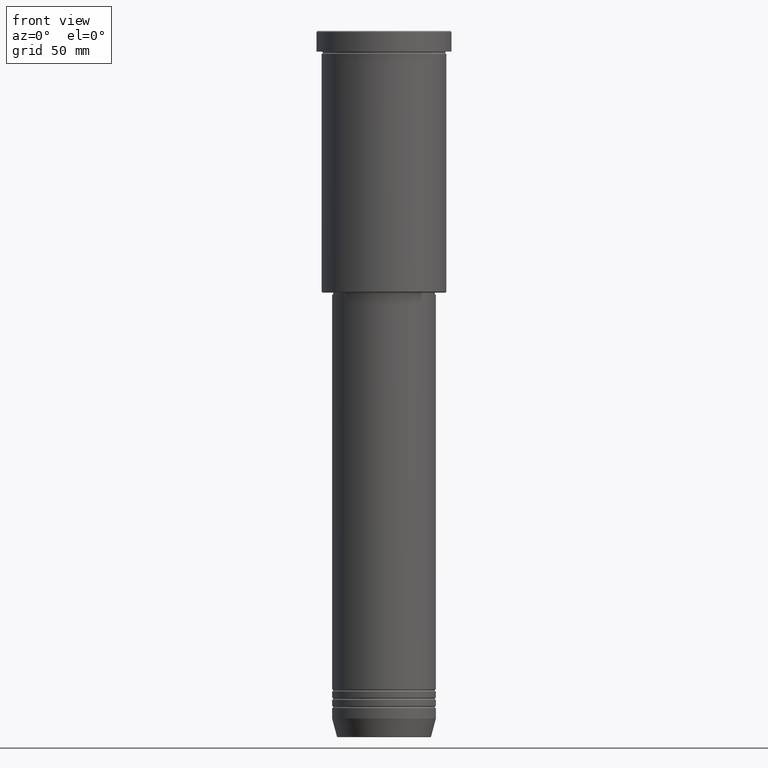
[diagram: clean part render]
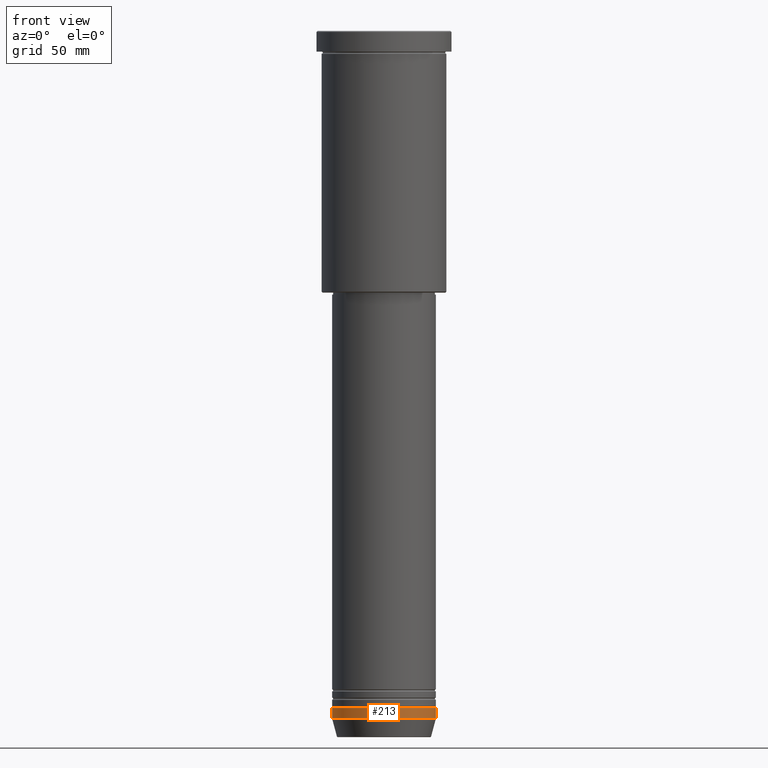
[diagram: same view with one face highlighted and labeled with its STEP entity id]
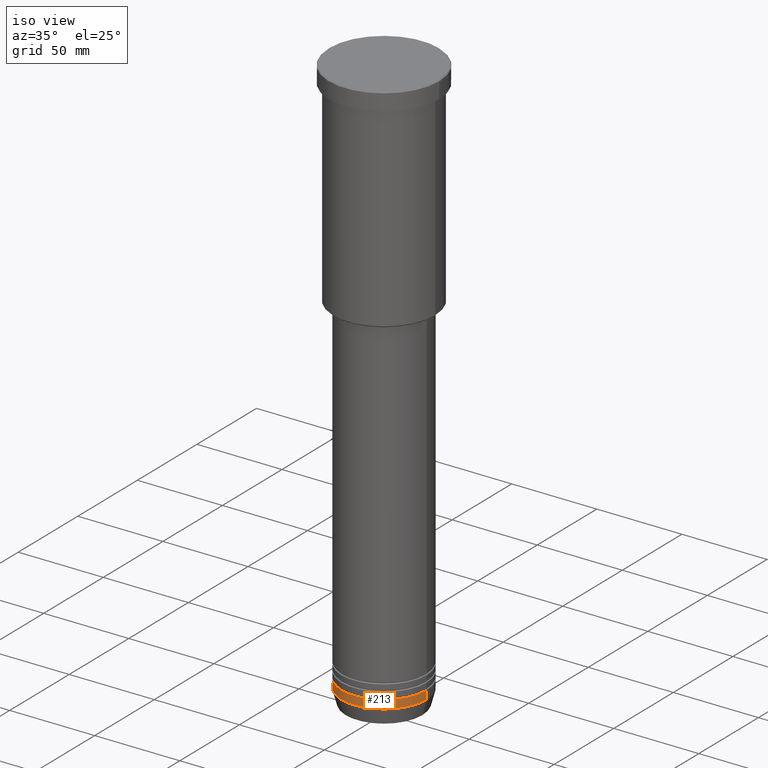
[diagram: same view with one face highlighted and labeled with its STEP entity id]
A machine part, front view. The second image highlights one B-rep face of the part: STEP entity #213.
A second angle (iso view) of the same face is appended — the face is thin or edge-on in the first view.
In plain terms, the highlighted cylindrical surface (partial cylindrical patch) has radius 25 mm, axis along (-0, -0, 1).
Its self-contained STEP definition (entity closure, byte-faithful):
#43 = DIRECTION ( 'NONE',  ( -0.000000000000000000, -0.000000000000000000, 1.000000000000000000 ) ) ;
#70 = VERTEX_POINT ( 'NONE', #594 ) ;
#178 = CIRCLE ( 'NONE', #996, 25.00000000000000000 ) ;
#179 = CARTESIAN_POINT ( 'NONE',  ( 0.000000000000000000, 0.000000000000000000, 0.000000000000000000 ) ) ;
#184 = EDGE_LOOP ( 'NONE', ( #239, #658, #547, #1101 ) ) ;
#191 = CARTESIAN_POINT ( 'NONE',  ( 25.00000000000000000, 0.000000000000000000, -326.0000000000000568 ) ) ;
#196 = EDGE_CURVE ( 'NONE', #1115, #559, #178, .T. ) ;
#212 = LINE ( 'NONE', #575, #806 ) ;
#213 = ADVANCED_FACE ( 'NONE', ( #802 ), #886, .T. ) ;
#232 = CARTESIAN_POINT ( 'NONE',  ( 0.000000000000000000, 0.000000000000000000, -331.0000000000000000 ) ) ;
#239 = ORIENTED_EDGE ( 'NONE', *, *, #663, .F. ) ;
#254 = DIRECTION ( 'NONE',  ( -0.000000000000000000, -0.000000000000000000, 1.000000000000000000 ) ) ;
#321 = CIRCLE ( 'NONE', #1160, 25.00000000000000000 ) ;
#343 = CARTESIAN_POINT ( 'NONE',  ( 0.000000000000000000, 0.000000000000000000, -326.0000000000000568 ) ) ;
#431 = DIRECTION ( 'NONE',  ( 1.000000000000000000, 0.000000000000000000, 0.000000000000000000 ) ) ;
#435 = DIRECTION ( 'NONE',  ( 1.000000000000000000, 0.000000000000000000, 0.000000000000000000 ) ) ;
#498 = EDGE_CURVE ( 'NONE', #70, #559, #212, .T. ) ;
#547 = ORIENTED_EDGE ( 'NONE', *, *, #498, .T. ) ;
#559 = VERTEX_POINT ( 'NONE', #191 ) ;
#562 = CARTESIAN_POINT ( 'NONE',  ( -25.00000000000000000, 3.061616997868383043E-15, 0.000000000000000000 ) ) ;
#573 = CARTESIAN_POINT ( 'NONE',  ( -25.00000000000000000, 3.061616997868383043E-15, -331.0000000000000000 ) ) ;
#575 = CARTESIAN_POINT ( 'NONE',  ( 25.00000000000000000, 0.000000000000000000, 0.000000000000000000 ) ) ;
#594 = CARTESIAN_POINT ( 'NONE',  ( 25.00000000000000000, 0.000000000000000000, -331.0000000000000000 ) ) ;
#619 = VECTOR ( 'NONE', #43, 1000.000000000000000 ) ;
#658 = ORIENTED_EDGE ( 'NONE', *, *, #713, .T. ) ;
#663 = EDGE_CURVE ( 'NONE', #1024, #1115, #1038, .T. ) ;
#665 = AXIS2_PLACEMENT_3D ( 'NONE', #179, #987, #431 ) ;
#671 = DIRECTION ( 'NONE',  ( -0.000000000000000000, -0.000000000000000000, 1.000000000000000000 ) ) ;
#713 = EDGE_CURVE ( 'NONE', #1024, #70, #321, .T. ) ;
#802 = FACE_OUTER_BOUND ( 'NONE', #184, .T. ) ;
#805 = DIRECTION ( 'NONE',  ( -0.000000000000000000, -0.000000000000000000, 1.000000000000000000 ) ) ;
#806 = VECTOR ( 'NONE', #671, 1000.000000000000000 ) ;
#886 = CYLINDRICAL_SURFACE ( 'NONE', #665, 25.00000000000000000 ) ;
#954 = CARTESIAN_POINT ( 'NONE',  ( -25.00000000000000000, 3.061616997868383043E-15, -326.0000000000000568 ) ) ;
#987 = DIRECTION ( 'NONE',  ( -0.000000000000000000, -0.000000000000000000, 1.000000000000000000 ) ) ;
#996 = AXIS2_PLACEMENT_3D ( 'NONE', #343, #254, #435 ) ;
#1024 = VERTEX_POINT ( 'NONE', #573 ) ;
#1038 = LINE ( 'NONE', #562, #619 ) ;
#1101 = ORIENTED_EDGE ( 'NONE', *, *, #196, .F. ) ;
#1115 = VERTEX_POINT ( 'NONE', #954 ) ;
#1148 = DIRECTION ( 'NONE',  ( 1.000000000000000000, 0.000000000000000000, 0.000000000000000000 ) ) ;
#1160 = AXIS2_PLACEMENT_3D ( 'NONE', #232, #805, #1148 ) ;